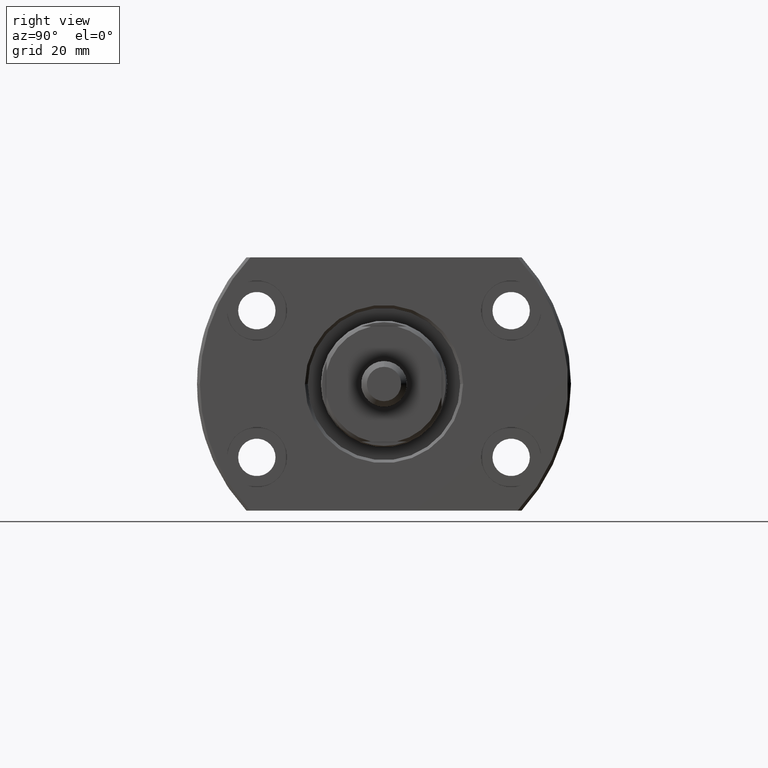
[diagram: clean part render]
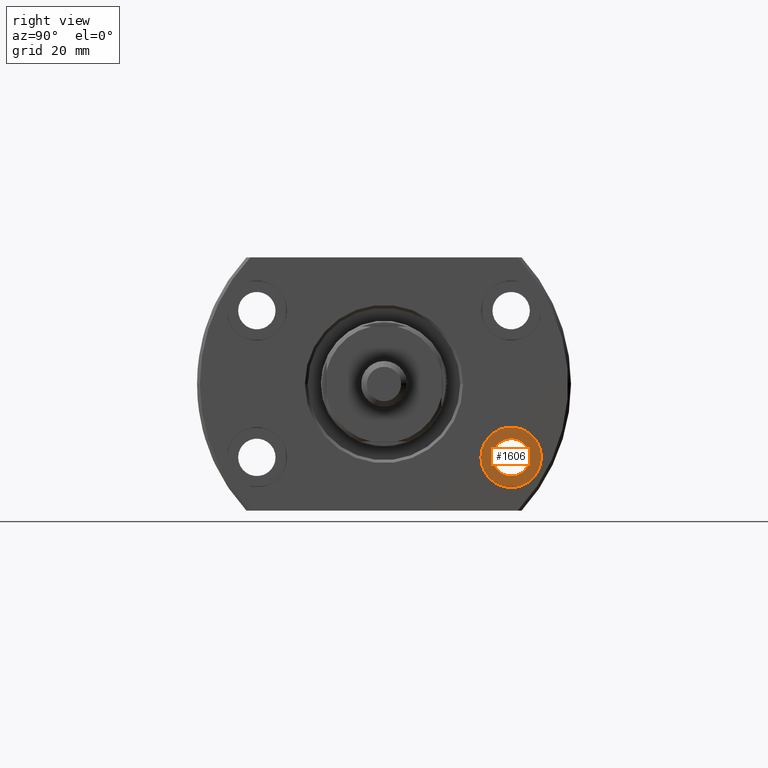
[diagram: same view with one face highlighted and labeled with its STEP entity id]
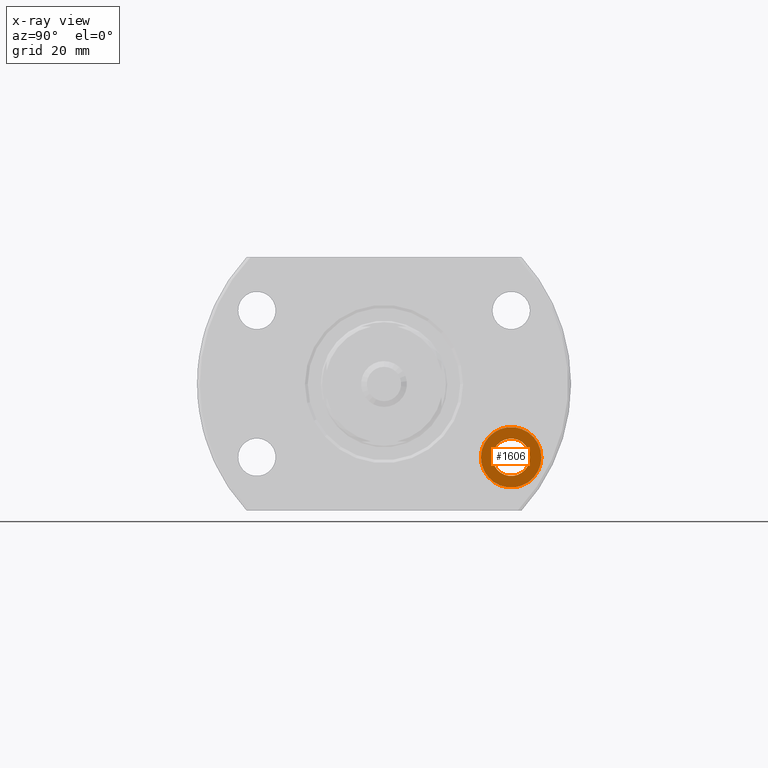
[diagram: x-ray of the same camera — body ghosted, the highlighted face saturated]
A machine part, right view. The second image highlights one B-rep face of the part: STEP entity #1606.
The next image is the same camera in x-ray: the body ghosted, the highlighted face saturated — about 0% of this face is hidden behind the body in this view.
In plain terms, the highlighted planar face has unit normal (1, -0, -0).
Its self-contained STEP definition (entity closure, byte-faithful):
#23 = EDGE_CURVE ( 'NONE', #2072, #1027, #1753, .T. ) ;
#35 = DIRECTION ( 'NONE',  ( 2.882309775469156694E-14, 1.000000000000000000, 0.000000000000000000 ) ) ;
#51 = DIRECTION ( 'NONE',  ( 1.000000000000000000, -2.887798767815668620E-14, -6.310887241768094443E-30 ) ) ;
#95 = DIRECTION ( 'NONE',  ( 1.000000000000000000, -2.887798767815668620E-14, -6.310887241768094443E-30 ) ) ;
#121 = VERTEX_POINT ( 'NONE', #1489 ) ;
#181 = DIRECTION ( 'NONE',  ( 2.887798767815668620E-14, 1.000000000000000000, 0.000000000000000000 ) ) ;
#248 = DIRECTION ( 'NONE',  ( 2.907726969256361977E-14, 1.000000000000000000, 0.000000000000000000 ) ) ;
#423 = CARTESIAN_POINT ( 'NONE',  ( 25.00000000000063949, 22.09999999999928022, -12.75000000000000178 ) ) ;
#491 = PLANE ( 'NONE',  #1968 ) ;
#493 = EDGE_CURVE ( 'NONE', #1027, #2072, #1229, .T. ) ;
#593 = CARTESIAN_POINT ( 'NONE',  ( 25.00000000000063949, 22.09999999999928022, -12.75000000000000178 ) ) ;
#620 = EDGE_CURVE ( 'NONE', #3466, #121, #1644, .T. ) ;
#731 = CARTESIAN_POINT ( 'NONE',  ( 25.00000000000073186, 25.34999999999928022, -12.75000000000000178 ) ) ;
#864 = AXIS2_PLACEMENT_3D ( 'NONE', #1122, #1412, #248 ) ;
#933 = AXIS2_PLACEMENT_3D ( 'NONE', #593, #51, #1423 ) ;
#1027 = VERTEX_POINT ( 'NONE', #731 ) ;
#1094 = ORIENTED_EDGE ( 'NONE', *, *, #2587, .T. ) ;
#1122 = CARTESIAN_POINT ( 'NONE',  ( 25.00000000000063949, 22.09999999999928022, -12.75000000000000178 ) ) ;
#1170 = ORIENTED_EDGE ( 'NONE', *, *, #23, .F. ) ;
#1229 = CIRCLE ( 'NONE', #933, 3.249999999999999556 ) ;
#1259 = EDGE_LOOP ( 'NONE', ( #3507, #1170 ) ) ;
#1349 = FACE_OUTER_BOUND ( 'NONE', #1517, .T. ) ;
#1390 = CIRCLE ( 'NONE', #3464, 5.250000000000000888 ) ;
#1412 = DIRECTION ( 'NONE',  ( 1.000000000000000000, -2.887798767815668620E-14, -6.310887241768094443E-30 ) ) ;
#1423 = DIRECTION ( 'NONE',  ( 2.882309775469156694E-14, 1.000000000000000000, 0.000000000000000000 ) ) ;
#1489 = CARTESIAN_POINT ( 'NONE',  ( 25.00000000000079226, 27.34999999999928022, -12.75000000000000178 ) ) ;
#1493 = CARTESIAN_POINT ( 'NONE',  ( 25.00000000000054712, 18.84999999999928022, -12.75000000000000178 ) ) ;
#1517 = EDGE_LOOP ( 'NONE', ( #1094, #2450 ) ) ;
#1606 = ADVANCED_FACE ( 'NONE', ( #2165, #1349 ), #491, .T. ) ;
#1644 = CIRCLE ( 'NONE', #864, 5.250000000000000888 ) ;
#1746 = CARTESIAN_POINT ( 'NONE',  ( 25.00000000000063949, 22.09999999999928022, -12.75000000000000178 ) ) ;
#1753 = CIRCLE ( 'NONE', #3242, 3.249999999999999556 ) ;
#1968 = AXIS2_PLACEMENT_3D ( 'NONE', #3261, #2779, #181 ) ;
#2072 = VERTEX_POINT ( 'NONE', #1493 ) ;
#2165 = FACE_BOUND ( 'NONE', #1259, .T. ) ;
#2450 = ORIENTED_EDGE ( 'NONE', *, *, #620, .T. ) ;
#2587 = EDGE_CURVE ( 'NONE', #121, #3466, #1390, .T. ) ;
#2779 = DIRECTION ( 'NONE',  ( 1.000000000000000000, -2.887798767815668620E-14, -6.310887241768094443E-30 ) ) ;
#2904 = CARTESIAN_POINT ( 'NONE',  ( 25.00000000000048672, 16.84999999999928022, -12.75000000000000178 ) ) ;
#2971 = DIRECTION ( 'NONE',  ( 1.000000000000000000, -2.887798767815668620E-14, -6.310887241768094443E-30 ) ) ;
#3242 = AXIS2_PLACEMENT_3D ( 'NONE', #1746, #95, #35 ) ;
#3250 = DIRECTION ( 'NONE',  ( 2.907726969256361977E-14, 1.000000000000000000, 0.000000000000000000 ) ) ;
#3261 = CARTESIAN_POINT ( 'NONE',  ( 25.00000000000000000, -7.220363146036227996E-13, -1.987929481156949750E-28 ) ) ;
#3464 = AXIS2_PLACEMENT_3D ( 'NONE', #423, #2971, #3250 ) ;
#3466 = VERTEX_POINT ( 'NONE', #2904 ) ;
#3507 = ORIENTED_EDGE ( 'NONE', *, *, #493, .F. ) ;